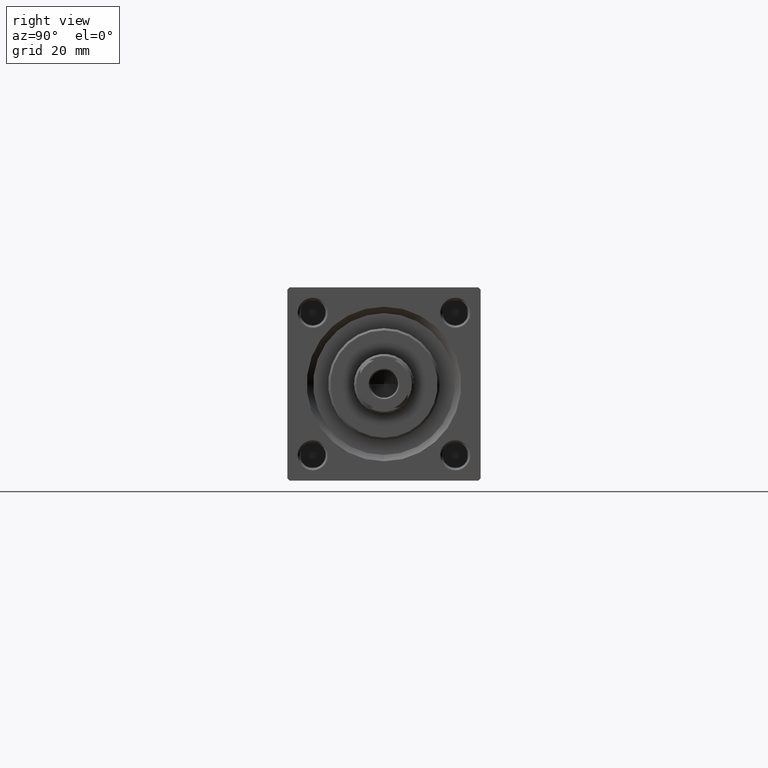
[diagram: clean part render]
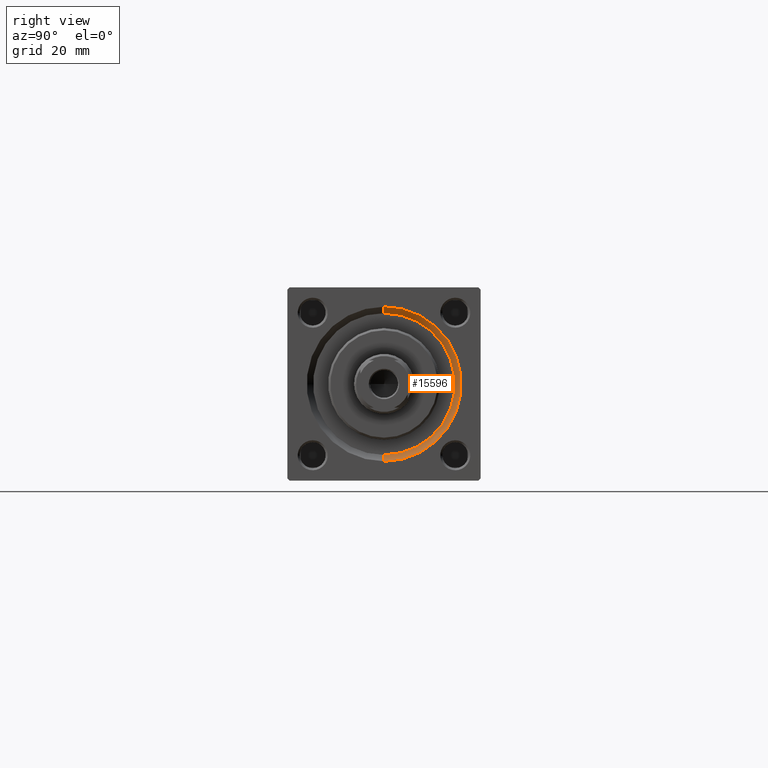
[diagram: same view with one face highlighted and labeled with its STEP entity id]
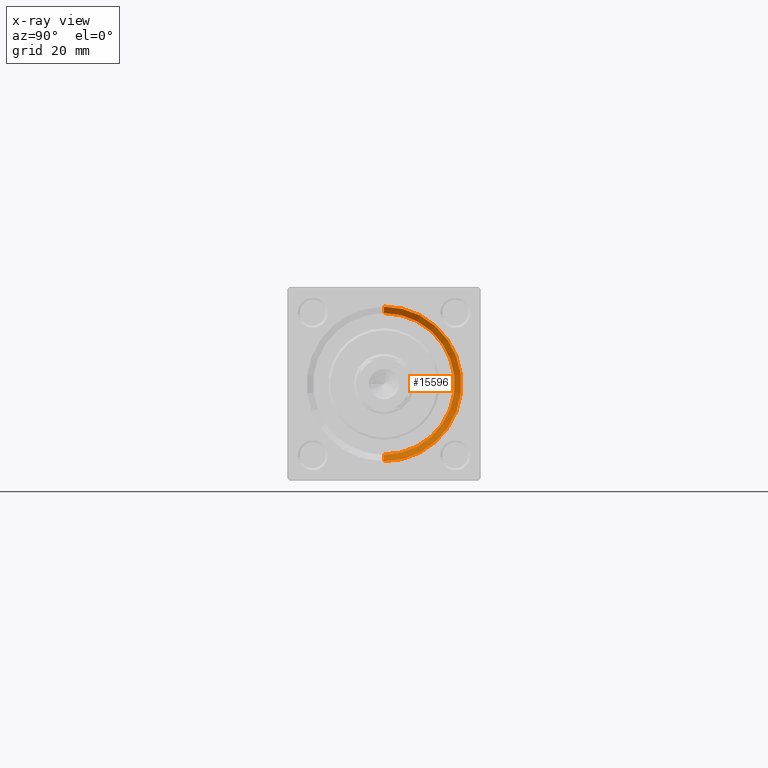
[diagram: x-ray of the same camera — body ghosted, the highlighted face saturated]
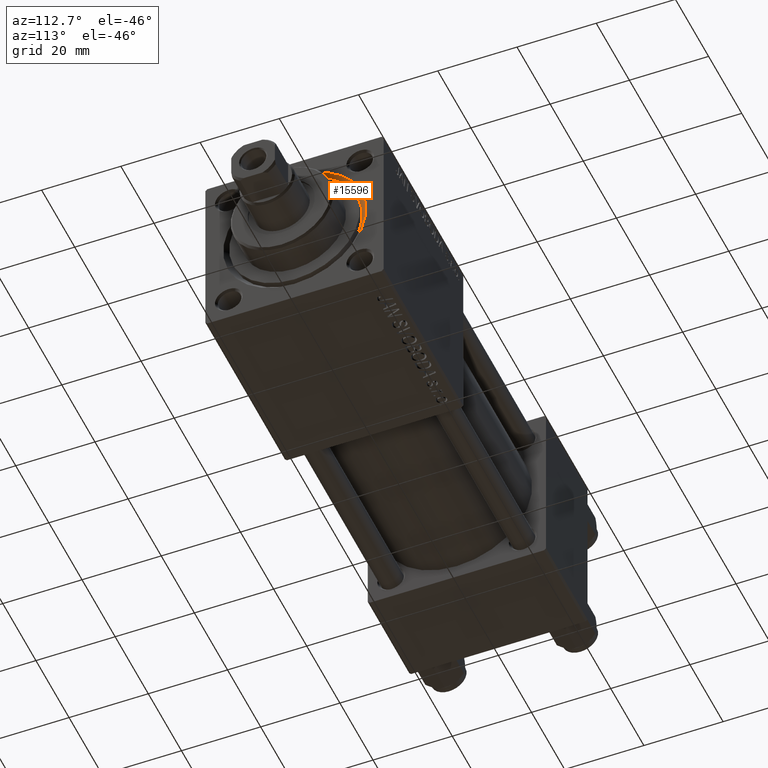
[diagram: same view with one face highlighted and labeled with its STEP entity id]
A machine part, right view. The second image highlights one B-rep face of the part: STEP entity #15596.
The next image is the same camera in x-ray: the body ghosted, the highlighted face saturated — about 0% of this face is hidden behind the body in this view.
A second angle (auxiliary view) of the same face is appended — the face is thin or edge-on in the first view.
In plain terms, the highlighted conical surface has half-angle 45 deg.
Its self-contained STEP definition (entity closure, byte-faithful):
#125 = CIRCLE ( 'NONE', #16341, 16.50000000000000000 ) ;
#790 = LINE ( 'NONE', #4337, #22799 ) ;
#4337 = CARTESIAN_POINT ( 'NONE',  ( 121.5000000000000142, 2.020667218593133100E-15, 16.50000000000000000 ) ) ;
#5658 = LINE ( 'NONE', #32587, #46162 ) ;
#5737 = ORIENTED_EDGE ( 'NONE', *, *, #16252, .F. ) ;
#7346 = CONICAL_SURFACE ( 'NONE', #36570, 16.50000000000000000, 0.7853981633974482790 ) ;
#12539 = EDGE_CURVE ( 'NONE', #32955, #43693, #29271, .T. ) ;
#13718 = DIRECTION ( 'NONE',  ( 1.000000000000000000, 0.000000000000000000, 0.000000000000000000 ) ) ;
#14667 = CARTESIAN_POINT ( 'NONE',  ( 123.0000000000000142, 0.000000000000000000, 0.000000000000000000 ) ) ;
#15008 = ORIENTED_EDGE ( 'NONE', *, *, #38125, .F. ) ;
#15596 = ADVANCED_FACE ( 'NONE', ( #48459 ), #7346, .F. ) ;
#15943 = VERTEX_POINT ( 'NONE', #35625 ) ;
#16252 = EDGE_CURVE ( 'NONE', #15943, #32955, #790, .T. ) ;
#16341 = AXIS2_PLACEMENT_3D ( 'NONE', #21014, #40035, #32934 ) ;
#17121 = AXIS2_PLACEMENT_3D ( 'NONE', #14667, #25359, #41553 ) ;
#20447 = ORIENTED_EDGE ( 'NONE', *, *, #12539, .F. ) ;
#21014 = CARTESIAN_POINT ( 'NONE',  ( 121.5000000000000142, 0.000000000000000000, 0.000000000000000000 ) ) ;
#22799 = VECTOR ( 'NONE', #27965, 1000.000000000000114 ) ;
#25359 = DIRECTION ( 'NONE',  ( -1.000000000000000000, 0.000000000000000000, -0.000000000000000000 ) ) ;
#27965 = DIRECTION ( 'NONE',  ( 0.7071067811865474617, 8.659560562354932858E-17, 0.7071067811865474617 ) ) ;
#29205 = DIRECTION ( 'NONE',  ( 0.000000000000000000, 0.000000000000000000, -1.000000000000000000 ) ) ;
#29271 = CIRCLE ( 'NONE', #17121, 18.00000000000000355 ) ;
#29363 = ORIENTED_EDGE ( 'NONE', *, *, #34366, .T. ) ;
#32382 = CARTESIAN_POINT ( 'NONE',  ( 123.0000000000000142, 0.000000000000000000, -18.00000000000000355 ) ) ;
#32587 = CARTESIAN_POINT ( 'NONE',  ( 121.5000000000000142, 0.000000000000000000, -16.50000000000000000 ) ) ;
#32934 = DIRECTION ( 'NONE',  ( 0.000000000000000000, 0.000000000000000000, 1.000000000000000000 ) ) ;
#32955 = VERTEX_POINT ( 'NONE', #42167 ) ;
#33008 = CARTESIAN_POINT ( 'NONE',  ( 121.5000000000000142, 0.000000000000000000, 0.000000000000000000 ) ) ;
#34366 = EDGE_CURVE ( 'NONE', #46466, #43693, #5658, .T. ) ;
#35625 = CARTESIAN_POINT ( 'NONE',  ( 121.5000000000000142, 2.020667218593133100E-15, 16.50000000000000000 ) ) ;
#35630 = DIRECTION ( 'NONE',  ( 0.7071067811865474617, 0.000000000000000000, -0.7071067811865474617 ) ) ;
#36570 = AXIS2_PLACEMENT_3D ( 'NONE', #33008, #13718, #29205 ) ;
#38125 = EDGE_CURVE ( 'NONE', #46466, #15943, #125, .T. ) ;
#40035 = DIRECTION ( 'NONE',  ( 1.000000000000000000, 0.000000000000000000, 0.000000000000000000 ) ) ;
#41553 = DIRECTION ( 'NONE',  ( 0.000000000000000000, 0.000000000000000000, 1.000000000000000000 ) ) ;
#42167 = CARTESIAN_POINT ( 'NONE',  ( 123.0000000000000142, 2.204364238465235822E-15, 18.00000000000000355 ) ) ;
#42799 = EDGE_LOOP ( 'NONE', ( #5737, #15008, #29363, #20447 ) ) ;
#43693 = VERTEX_POINT ( 'NONE', #32382 ) ;
#46162 = VECTOR ( 'NONE', #35630, 1000.000000000000114 ) ;
#46399 = CARTESIAN_POINT ( 'NONE',  ( 121.5000000000000142, 0.000000000000000000, -16.50000000000000000 ) ) ;
#46466 = VERTEX_POINT ( 'NONE', #46399 ) ;
#48459 = FACE_OUTER_BOUND ( 'NONE', #42799, .T. ) ;